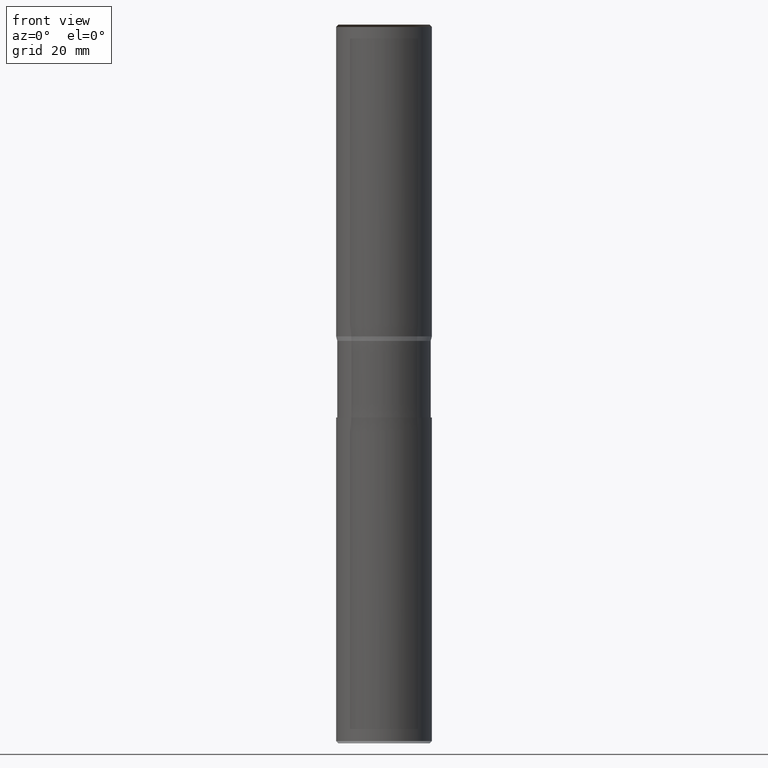
[diagram: clean part render]
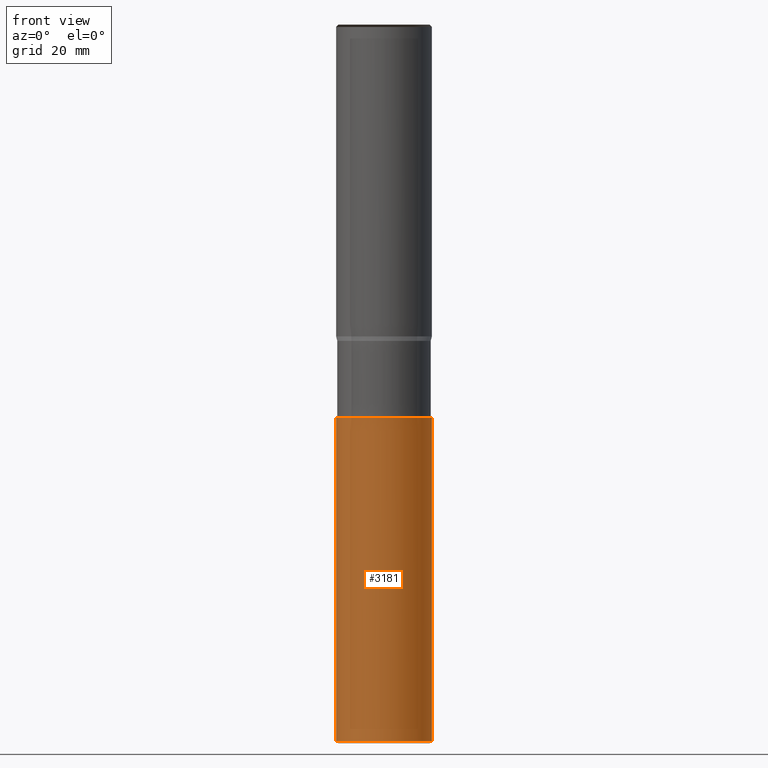
[diagram: same view with one face highlighted and labeled with its STEP entity id]
A machine part, front view. The second image highlights one B-rep face of the part: STEP entity #3181.
In plain terms, the highlighted face is a freeform B-spline surface patch.
Its self-contained STEP definition (entity closure, byte-faithful):
#2986=CARTESIAN_POINT('',(10.0,0.0,-84.43300989));
#2990=CARTESIAN_POINT('',(-10.0,0.0,-84.43300989));
#2991=CARTESIAN_POINT('',(10.0,0.0,-16.93300989));
#2995=CARTESIAN_POINT('',(-10.0,0.0,-16.93300989));
#3000=CARTESIAN_POINT('',(-10.0,-10.0,-84.43300989));
#3001=CARTESIAN_POINT('',(0.0,-10.0,-84.43300989));
#3002=CARTESIAN_POINT('',(10.0,-10.0,-84.43300989));
#3003=CARTESIAN_POINT('',(-10.0,-10.0,-16.93300989));
#3004=CARTESIAN_POINT('',(0.0,-10.0,-16.93300989));
#3005=CARTESIAN_POINT('',(10.0,-10.0,-16.93300989));
#3162=(
BOUNDED_SURFACE()
B_SPLINE_SURFACE(1,2,(
(#2990,#3000,#3001,#3002,#2986),
(#2995,#3003,#3004,#3005,#2991)
), .UNSPECIFIED.,.F.,.F.,.F.)
B_SPLINE_SURFACE_WITH_KNOTS((2,2),(3,2,3),(
0.0,1.0),(
0.0,0.5,1.0), .UNSPECIFIED.)
GEOMETRIC_REPRESENTATION_ITEM()
RATIONAL_B_SPLINE_SURFACE(((1.0,0.707106781187,1.0,0.707106781187,1.0),
(1.0,0.707106781187,1.0,0.707106781187,1.0)
))
REPRESENTATION_ITEM('')
SURFACE()
);
#3163=(
BOUNDED_CURVE()
B_SPLINE_CURVE(1,(#2995,#2990),.UNSPECIFIED.,.F.,.F.)
B_SPLINE_CURVE_WITH_KNOTS((2,2),
(0.0,1.0),.UNSPECIFIED.)
CURVE()
GEOMETRIC_REPRESENTATION_ITEM()
RATIONAL_B_SPLINE_CURVE((1.0,1.0))
REPRESENTATION_ITEM('')
);
#3164=(
BOUNDED_CURVE()
B_SPLINE_CURVE(2,(#2990,#3000,#3001,#3002,#2986),.UNSPECIFIED.,.F.,.F.)
B_SPLINE_CURVE_WITH_KNOTS((3,2,3),
(0.0,0.5,1.0),.UNSPECIFIED.)
CURVE()
GEOMETRIC_REPRESENTATION_ITEM()
RATIONAL_B_SPLINE_CURVE((1.0,0.707106781187,1.0,0.707106781187,1.0))
REPRESENTATION_ITEM('')
);
#3165=(
BOUNDED_CURVE()
B_SPLINE_CURVE(1,(#2986,#2991),.UNSPECIFIED.,.F.,.F.)
B_SPLINE_CURVE_WITH_KNOTS((2,2),
(0.0,1.0),.UNSPECIFIED.)
CURVE()
GEOMETRIC_REPRESENTATION_ITEM()
RATIONAL_B_SPLINE_CURVE((1.0,1.0))
REPRESENTATION_ITEM('')
);
#3166=(
BOUNDED_CURVE()
B_SPLINE_CURVE(2,(#2991,#3005,#3004,#3003,#2995),.UNSPECIFIED.,.F.,.F.)
B_SPLINE_CURVE_WITH_KNOTS((3,2,3),
(0.0,0.5,1.0),.UNSPECIFIED.)
CURVE()
GEOMETRIC_REPRESENTATION_ITEM()
RATIONAL_B_SPLINE_CURVE((1.0,0.707106781187,1.0,0.707106781187,1.0))
REPRESENTATION_ITEM('')
);
#3167=VERTEX_POINT('',#2986);
#3168=VERTEX_POINT('',#2990);
#3169=VERTEX_POINT('',#2991);
#3170=VERTEX_POINT('',#2995);
#3171=EDGE_CURVE('',#3170,#3168,#3163,.T.);
#3172=EDGE_CURVE('',#3168,#3167,#3164,.T.);
#3173=EDGE_CURVE('',#3167,#3169,#3165,.T.);
#3174=EDGE_CURVE('',#3169,#3170,#3166,.T.);
#3175=ORIENTED_EDGE('',*,*,#3171,.T.);
#3176=ORIENTED_EDGE('',*,*,#3172,.T.);
#3177=ORIENTED_EDGE('',*,*,#3173,.T.);
#3178=ORIENTED_EDGE('',*,*,#3174,.T.);
#3179=EDGE_LOOP('',(#3175,#3176,#3177,#3178));
#3180=FACE_OUTER_BOUND('',#3179,.T.);
#3181=ADVANCED_FACE('',(#3180),#3162,.T.);